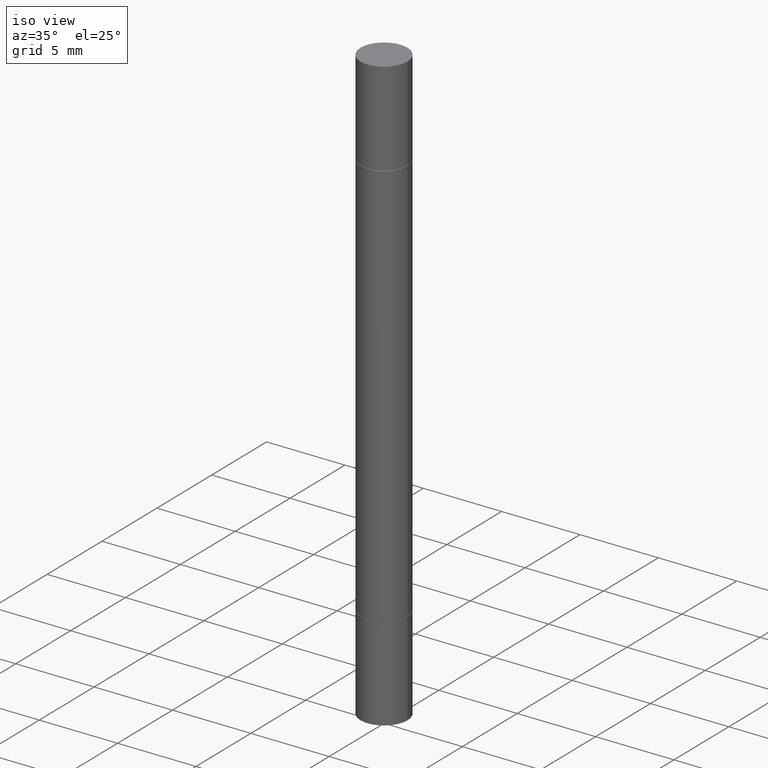
[diagram: clean part render]
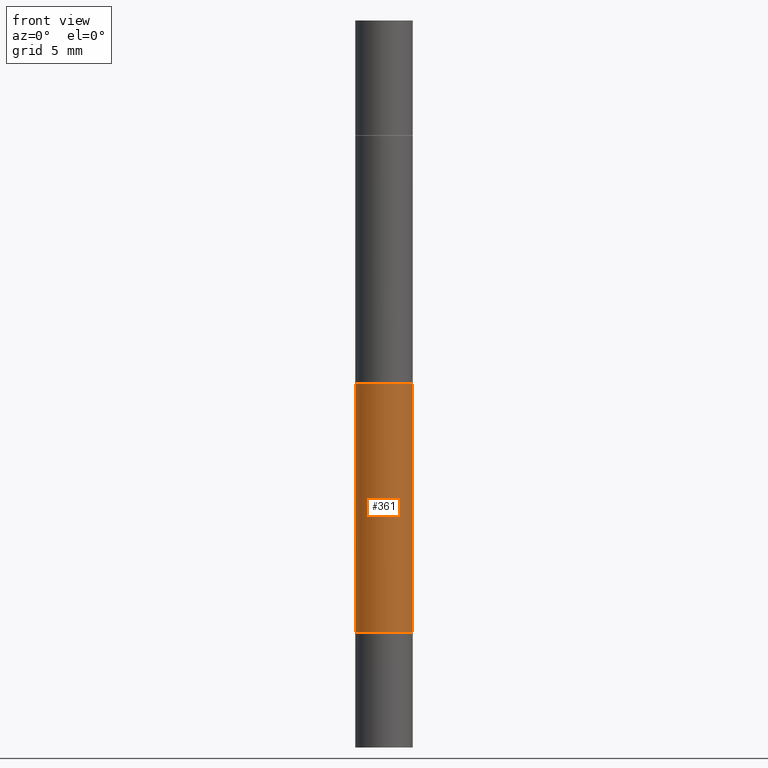
[diagram: tour spotlight — one face highlighted and labeled with its STEP entity id]
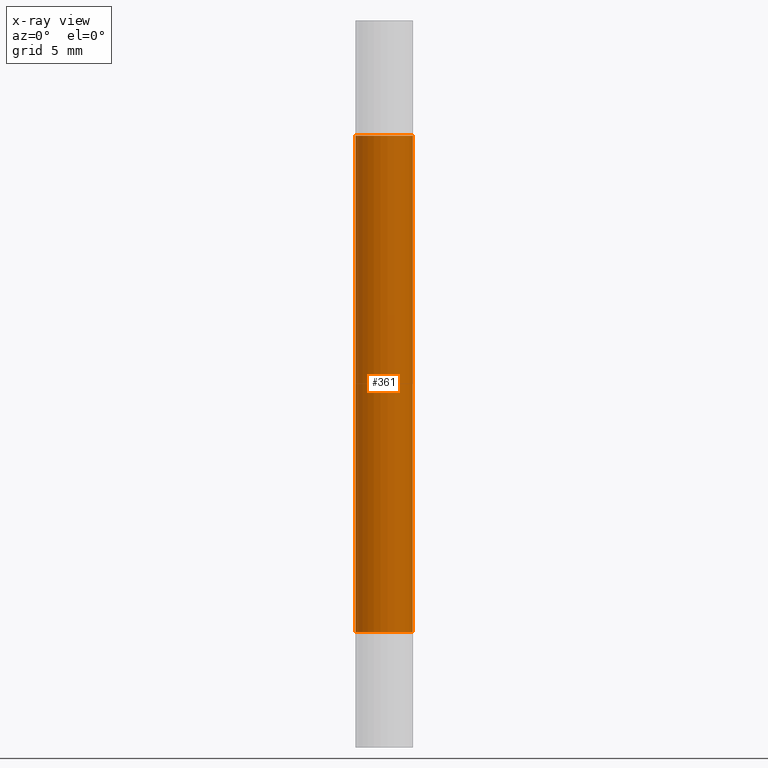
[diagram: x-ray of the same camera — body ghosted, this tour face saturated]
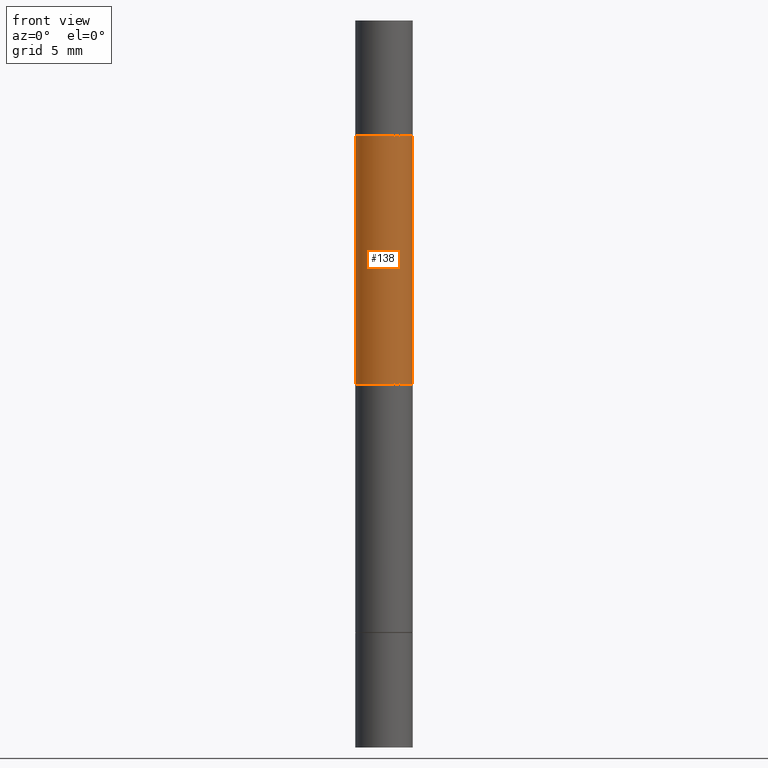
[diagram: tour spotlight — one face highlighted and labeled with its STEP entity id]
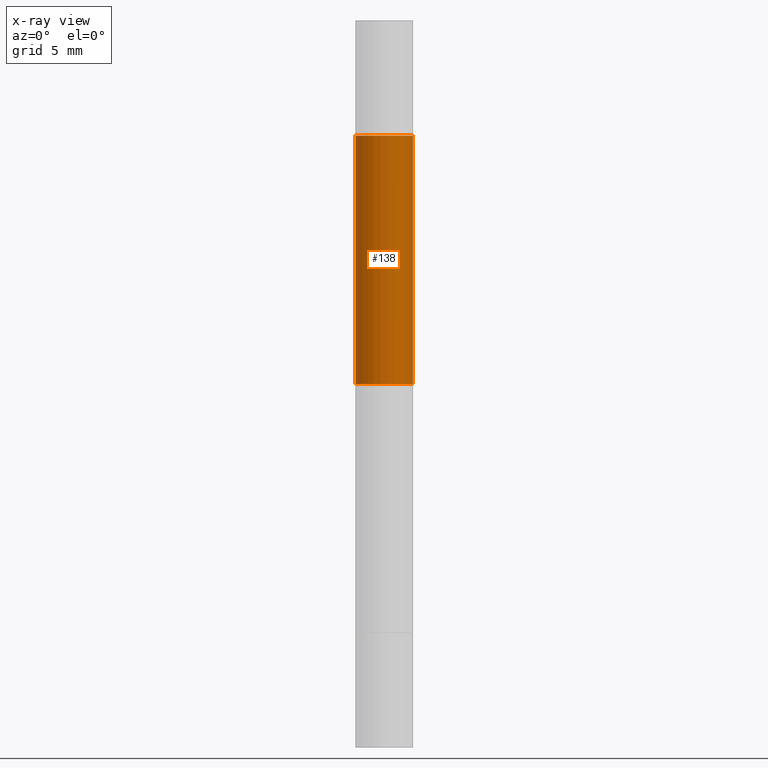
[diagram: x-ray of the same camera — body ghosted, this tour face saturated]
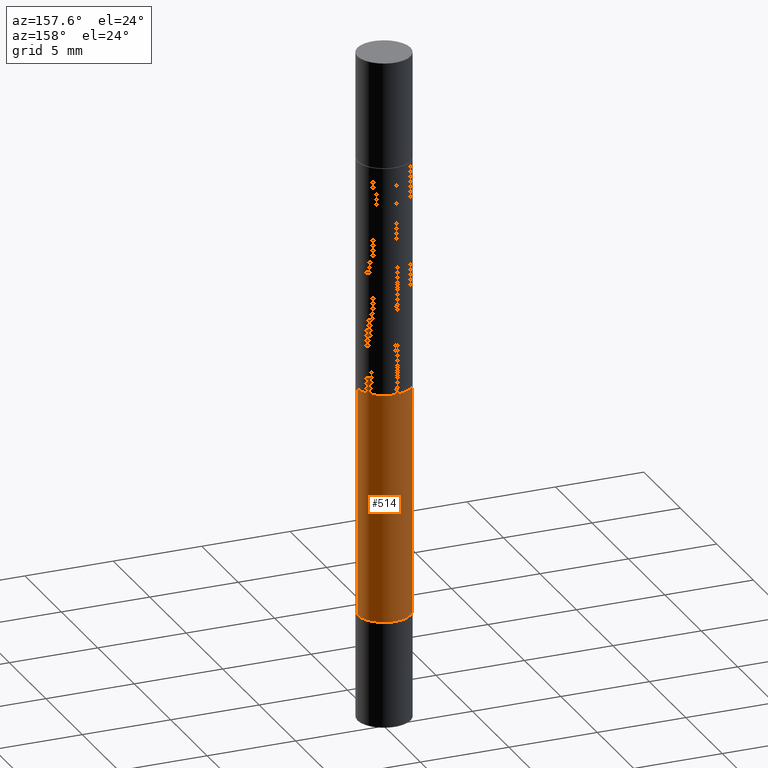
[diagram: tour spotlight — one face highlighted and labeled with its STEP entity id]
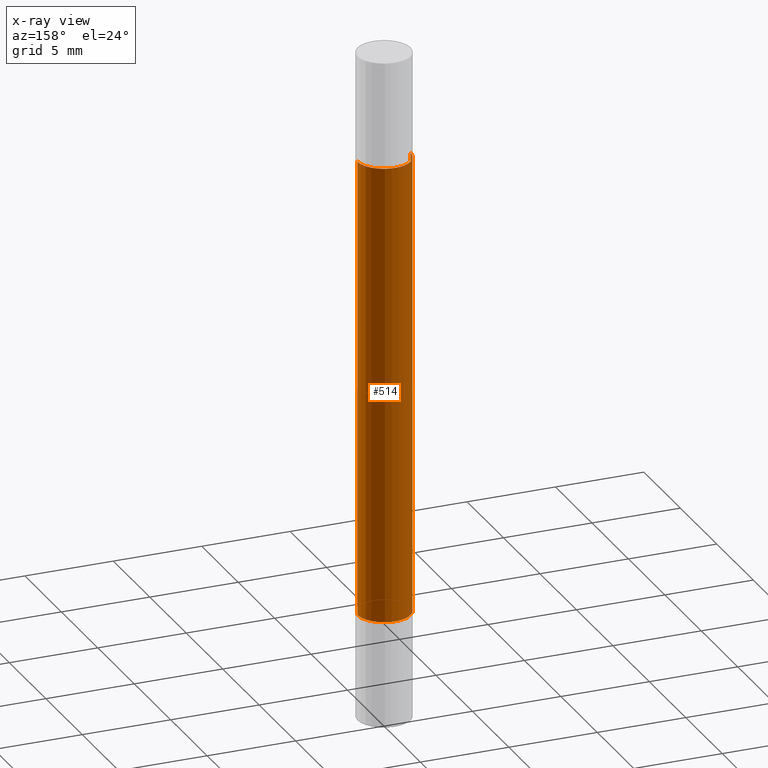
[diagram: x-ray of the same camera — body ghosted, this tour face saturated]
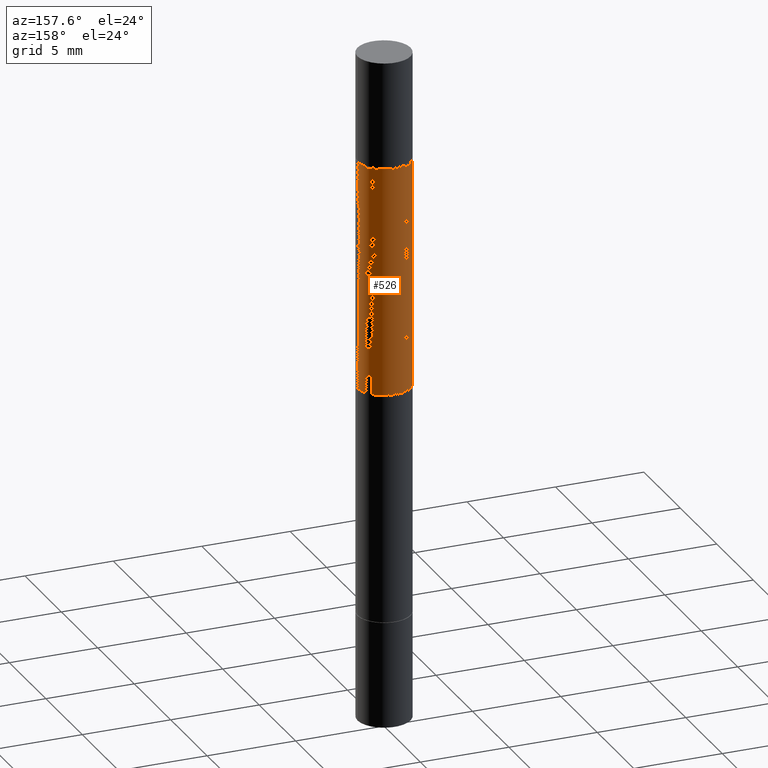
[diagram: tour spotlight — one face highlighted and labeled with its STEP entity id]
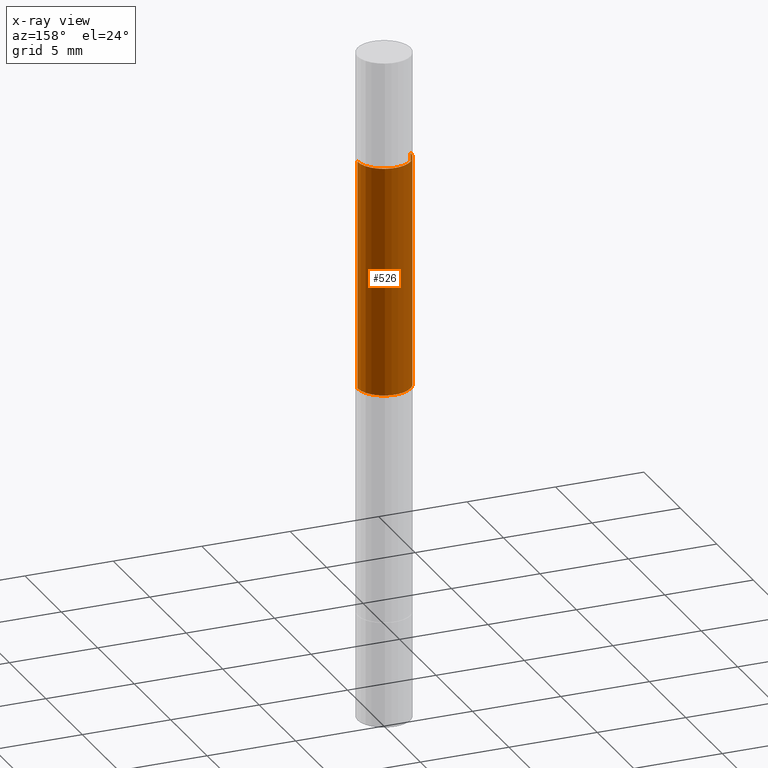
[diagram: x-ray of the same camera — body ghosted, this tour face saturated]
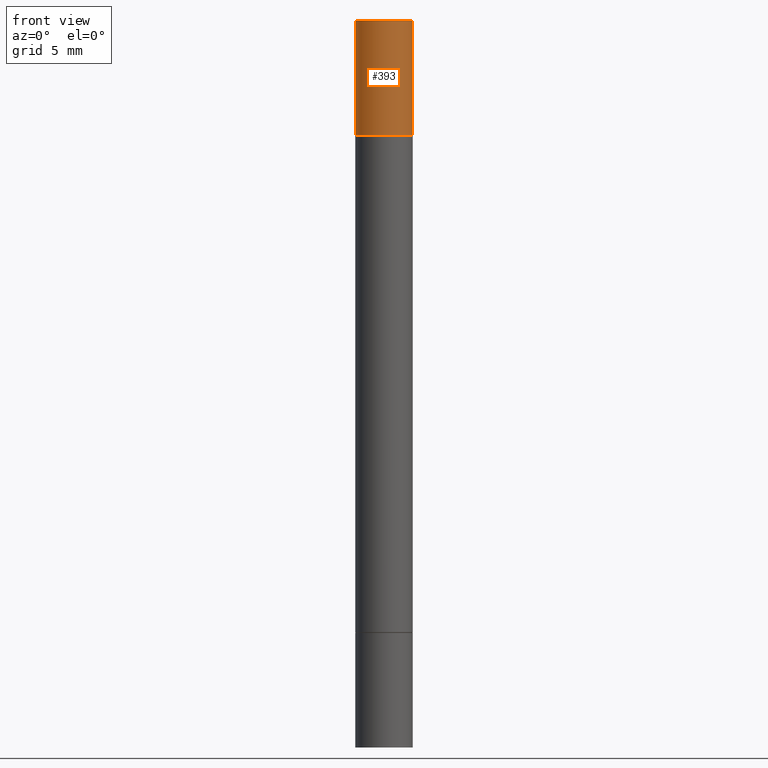
[diagram: tour spotlight — one face highlighted and labeled with its STEP entity id]
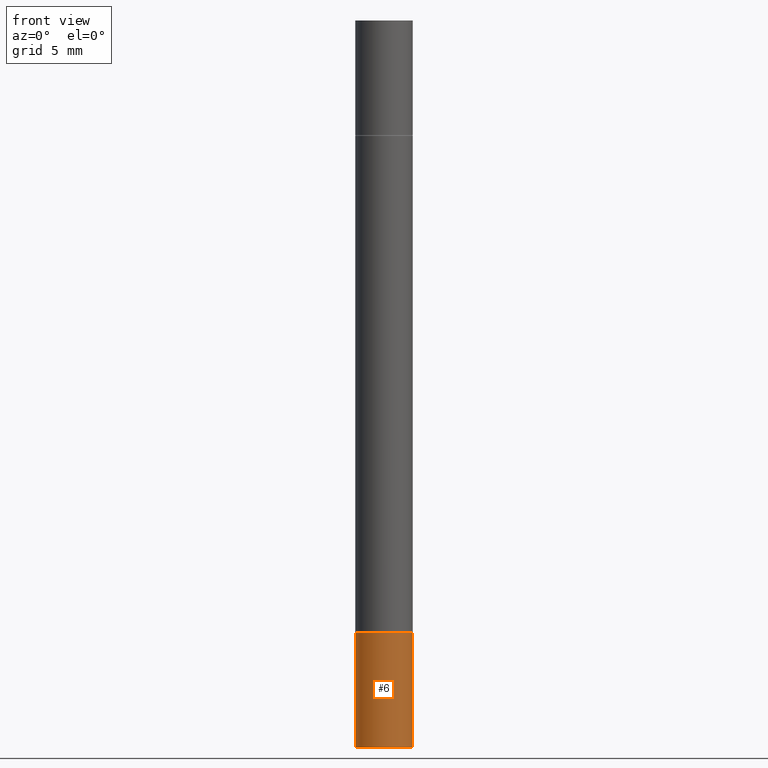
[diagram: tour spotlight — one face highlighted and labeled with its STEP entity id]
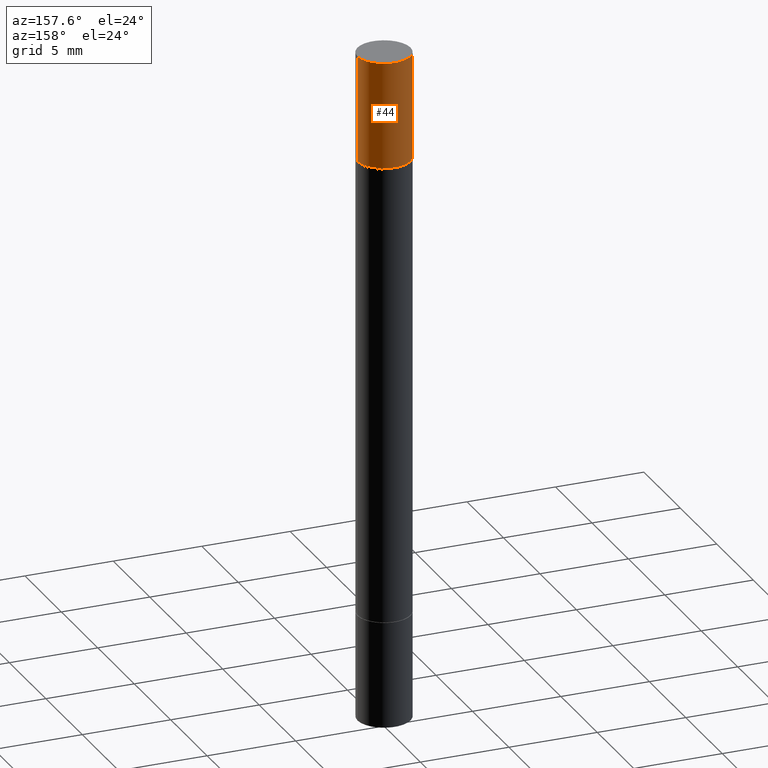
[diagram: tour spotlight — one face highlighted and labeled with its STEP entity id]
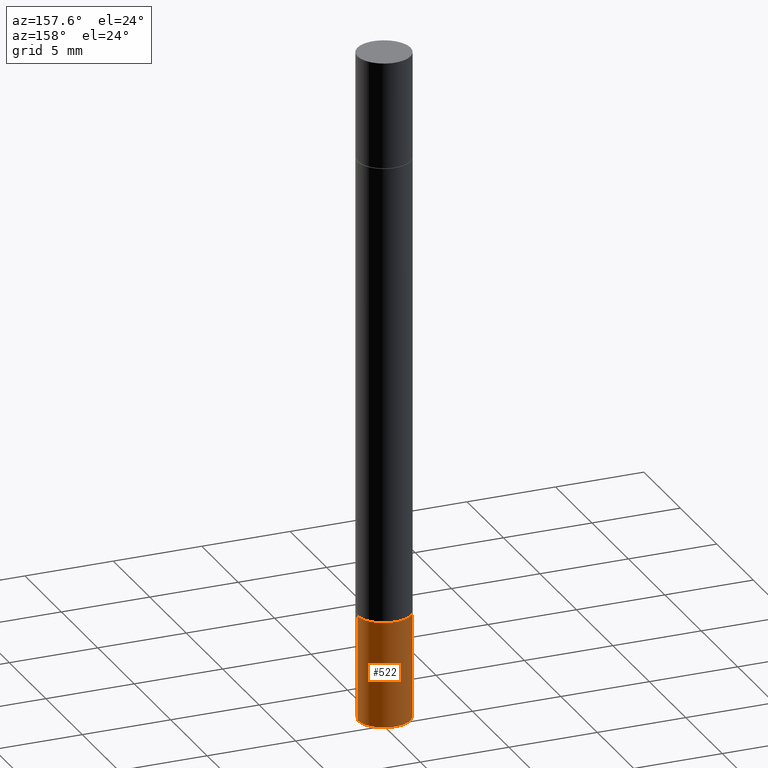
[diagram: tour spotlight — one face highlighted and labeled with its STEP entity id]
A machine part: a face-by-face anatomy tour. The part has 26 B-rep faces; the first image is the clean iso view, then the 8 largest visible faces are spotlighted one at a time (largest first), each with its STEP entity span.

Face 1 — front view, entity #361. An x-ray twin of the same camera follows (body ghosted, this face saturated) — the face is partly hidden behind the body. In plain terms, the highlighted cylindrical surface (edge-blend (fillet) strip) has radius 1.4999 mm, axis along (-0, -0, -1).
Definition (entity closure, byte-faithful):
#3 = FACE_OUTER_BOUND ( 'NONE', #55, .T. ) ;
#8 = ORIENTED_EDGE ( 'NONE', *, *, #368, .F. ) ;
#10 = CIRCLE ( 'NONE', #403, 0.05904999999999998445 ) ;
#39 = DIRECTION ( 'NONE',  ( 1.000000000000000000, -6.982962677686266711E-15, 0.000000000000000000 ) ) ;
#55 = EDGE_LOOP ( 'NONE', ( #173, #640, #436, #8 ) ) ;
#64 = VERTEX_POINT ( 'NONE', #250 ) ;
#67 = CARTESIAN_POINT ( 'NONE',  ( 0.05904999999999998445, -1.239803494897776754E-15, -0.2371999999999998554 ) ) ;
#108 = DIRECTION ( 'NONE',  ( -2.445468806185136877E-29, -3.492890411551753071E-15, -1.000000000000000000 ) ) ;
#143 = DIRECTION ( 'NONE',  ( 1.000000000000000000, -6.982962677686258033E-15, 0.000000000000000000 ) ) ;
#147 = AXIS2_PLACEMENT_3D ( 'NONE', #431, #307, #39 ) ;
#173 = ORIENTED_EDGE ( 'NONE', *, *, #256, .F. ) ;
#208 = CARTESIAN_POINT ( 'NONE',  ( 3.078600680106467904E-29, -8.274595487804013404E-16, -0.2371999999999998554 ) ) ;
#211 = LINE ( 'NONE', #568, #509 ) ;
#213 = CYLINDRICAL_SURFACE ( 'NONE', #147, 0.05904999999999991506 ) ;
#237 = VERTEX_POINT ( 'NONE', #318 ) ;
#250 = CARTESIAN_POINT ( 'NONE',  ( -0.05904999999999998445, -2.206690208753203299E-15, -1.258899999999999686 ) ) ;
#256 = EDGE_CURVE ( 'NONE', #237, #504, #556, .T. ) ;
#307 = DIRECTION ( 'NONE',  ( -2.445468806185136597E-29, -3.492890411551752677E-15, -1.000000000000000000 ) ) ;
#318 = CARTESIAN_POINT ( 'NONE',  ( -0.05904999999999998445, -4.223471420119940006E-16, -0.2371999999999998554 ) ) ;
#351 = EDGE_CURVE ( 'NONE', #237, #64, #211, .T. ) ;
#361 = ADVANCED_FACE ( 'NONE', ( #3 ), #213, .T. ) ;
#368 = EDGE_CURVE ( 'NONE', #504, #588, #464, .T. ) ;
#370 = DIRECTION ( 'NONE',  ( 1.000000000000000000, -6.982962677686266711E-15, 0.000000000000000000 ) ) ;
#394 = DIRECTION ( 'NONE',  ( -2.445468806185136877E-29, -3.492890411551753071E-15, -1.000000000000000000 ) ) ;
#403 = AXIS2_PLACEMENT_3D ( 'NONE', #410, #613, #143 ) ;
#410 = CARTESIAN_POINT ( 'NONE',  ( 3.078600680106467904E-29, -4.395425857469635235E-15, -1.258899999999999686 ) ) ;
#431 = CARTESIAN_POINT ( 'NONE',  ( 0.000000000000000000, -5.224659287882902542E-15, -1.496099999999999541 ) ) ;
#436 = ORIENTED_EDGE ( 'NONE', *, *, #620, .T. ) ;
#464 = LINE ( 'NONE', #585, #468 ) ;
#468 = VECTOR ( 'NONE', #394, 39.37007874015748143 ) ;
#504 = VERTEX_POINT ( 'NONE', #67 ) ;
#509 = VECTOR ( 'NONE', #108, 39.37007874015748143 ) ;
#539 = AXIS2_PLACEMENT_3D ( 'NONE', #208, #619, #370 ) ;
#556 = CIRCLE ( 'NONE', #539, 0.05904999999999998445 ) ;
#568 = CARTESIAN_POINT ( 'NONE',  ( -0.05904999999999991506, -4.819546881114493773E-15, -1.496099999999999541 ) ) ;
#585 = CARTESIAN_POINT ( 'NONE',  ( 0.05904999999999991506, -5.637003234000275885E-15, -1.496099999999999541 ) ) ;
#588 = VERTEX_POINT ( 'NONE', #610 ) ;
#610 = CARTESIAN_POINT ( 'NONE',  ( 0.05904999999999998445, -4.807769803587008577E-15, -1.258899999999999686 ) ) ;
#613 = DIRECTION ( 'NONE',  ( -2.445468806185136597E-29, 3.491481338843145583E-15, 1.000000000000000000 ) ) ;
#619 = DIRECTION ( 'NONE',  ( 2.445468806185136597E-29, 3.492890411551752677E-15, 1.000000000000000000 ) ) ;
#620 = EDGE_CURVE ( 'NONE', #64, #588, #10, .T. ) ;
#640 = ORIENTED_EDGE ( 'NONE', *, *, #351, .T. ) ;

Face 2 — front view, entity #138. An x-ray twin of the same camera follows (body ghosted, this face saturated) — the face is partly hidden behind the body. In plain terms, the highlighted cylindrical surface (edge-blend (fillet) strip) has radius 1.4999 mm, axis along (-0, -0, -1).
Definition (entity closure, byte-faithful):
#12 = DIRECTION ( 'NONE',  ( -0.000000000000000000, -3.492185875197449130E-15, -1.000000000000000000 ) ) ;
#32 = AXIS2_PLACEMENT_3D ( 'NONE', #130, #531, #380 ) ;
#33 = LINE ( 'NONE', #246, #676 ) ;
#45 = EDGE_CURVE ( 'NONE', #495, #550, #80, .T. ) ;
#62 = CARTESIAN_POINT ( 'NONE',  ( 1.829332940466790914E-29, -2.611802615521614436E-15, -0.7480499999999997707 ) ) ;
#80 = LINE ( 'NONE', #301, #358 ) ;
#86 = VERTEX_POINT ( 'NONE', #574 ) ;
#129 = ORIENTED_EDGE ( 'NONE', *, *, #45, .F. ) ;
#130 = CARTESIAN_POINT ( 'NONE',  ( 3.078600680106467904E-29, -8.274595487804013404E-16, -0.2371999999999998554 ) ) ;
#138 = ADVANCED_FACE ( 'NONE', ( #238 ), #609, .T. ) ;
#202 = EDGE_CURVE ( 'NONE', #550, #86, #593, .T. ) ;
#224 = ORIENTED_EDGE ( 'NONE', *, *, #202, .F. ) ;
#238 = FACE_OUTER_BOUND ( 'NONE', #553, .T. ) ;
#246 = CARTESIAN_POINT ( 'NONE',  ( -0.05904999999999991506, -4.819546881114493773E-15, -1.496099999999999541 ) ) ;
#287 = VERTEX_POINT ( 'NONE', #409 ) ;
#301 = CARTESIAN_POINT ( 'NONE',  ( 0.05904999999999991506, -5.637003234000275885E-15, -1.496099999999999541 ) ) ;
#314 = AXIS2_PLACEMENT_3D ( 'NONE', #62, #12, #629 ) ;
#331 = DIRECTION ( 'NONE',  ( -2.445468806185136597E-29, -3.492890411551752677E-15, -1.000000000000000000 ) ) ;
#358 = VECTOR ( 'NONE', #516, 39.37007874015748143 ) ;
#371 = CARTESIAN_POINT ( 'NONE',  ( 0.000000000000000000, -5.224659287882902542E-15, -1.496099999999999541 ) ) ;
#380 = DIRECTION ( 'NONE',  ( 1.000000000000000000, -6.982962677686266711E-15, 0.000000000000000000 ) ) ;
#396 = ORIENTED_EDGE ( 'NONE', *, *, #611, .T. ) ;
#409 = CARTESIAN_POINT ( 'NONE',  ( -0.05904999999999998445, -4.223471420119940006E-16, -0.2371999999999998554 ) ) ;
#420 = EDGE_CURVE ( 'NONE', #287, #495, #502, .T. ) ;
#454 = DIRECTION ( 'NONE',  ( -2.445468806185136877E-29, -3.492890411551753071E-15, -1.000000000000000000 ) ) ;
#461 = CARTESIAN_POINT ( 'NONE',  ( 0.05904999999999991506, -2.131975028268380589E-15, -0.7480499999999997707 ) ) ;
#495 = VERTEX_POINT ( 'NONE', #543 ) ;
#502 = CIRCLE ( 'NONE', #32, 0.05904999999999998445 ) ;
#516 = DIRECTION ( 'NONE',  ( -2.445468806185136877E-29, -3.492890411551753071E-15, -1.000000000000000000 ) ) ;
#531 = DIRECTION ( 'NONE',  ( 2.445468806185136597E-29, 3.492890411551752677E-15, 1.000000000000000000 ) ) ;
#543 = CARTESIAN_POINT ( 'NONE',  ( 0.05904999999999998445, -1.239803494897776754E-15, -0.2371999999999998554 ) ) ;
#545 = ORIENTED_EDGE ( 'NONE', *, *, #420, .F. ) ;
#546 = DIRECTION ( 'NONE',  ( 1.000000000000000000, -6.982962677686266711E-15, 0.000000000000000000 ) ) ;
#550 = VERTEX_POINT ( 'NONE', #461 ) ;
#553 = EDGE_LOOP ( 'NONE', ( #545, #396, #224, #129 ) ) ;
#572 = AXIS2_PLACEMENT_3D ( 'NONE', #371, #331, #546 ) ;
#574 = CARTESIAN_POINT ( 'NONE',  ( -0.05904999999999991506, -1.314518675382599069E-15, -0.7480499999999997707 ) ) ;
#593 = CIRCLE ( 'NONE', #314, 0.05904999999999991506 ) ;
#609 = CYLINDRICAL_SURFACE ( 'NONE', #572, 0.05904999999999991506 ) ;
#611 = EDGE_CURVE ( 'NONE', #287, #86, #33, .T. ) ;
#629 = DIRECTION ( 'NONE',  ( 0.000000000000000000, 1.000000000000000000, -4.626330217890376436E-15 ) ) ;
#676 = VECTOR ( 'NONE', #454, 39.37007874015748143 ) ;

Face 3 — auxiliary view, entity #514. An x-ray twin of the same camera follows (body ghosted, this face saturated) — the face is partly hidden behind the body. In plain terms, the highlighted cylindrical surface (edge-blend (fillet) strip) has radius 1.4999 mm, axis along (-0, -0, -1).
Definition (entity closure, byte-faithful):
#19 = ORIENTED_EDGE ( 'NONE', *, *, #586, .F. ) ;
#27 = ORIENTED_EDGE ( 'NONE', *, *, #391, .T. ) ;
#29 = FACE_OUTER_BOUND ( 'NONE', #395, .T. ) ;
#64 = VERTEX_POINT ( 'NONE', #250 ) ;
#67 = CARTESIAN_POINT ( 'NONE',  ( 0.05904999999999998445, -1.239803494897776754E-15, -0.2371999999999998554 ) ) ;
#89 = DIRECTION ( 'NONE',  ( 1.000000000000000000, -6.982962677686266711E-15, 0.000000000000000000 ) ) ;
#108 = DIRECTION ( 'NONE',  ( -2.445468806185136877E-29, -3.492890411551753071E-15, -1.000000000000000000 ) ) ;
#121 = DIRECTION ( 'NONE',  ( -2.445468806185136597E-29, 3.491481338843145583E-15, 1.000000000000000000 ) ) ;
#137 = AXIS2_PLACEMENT_3D ( 'NONE', #139, #560, #195 ) ;
#139 = CARTESIAN_POINT ( 'NONE',  ( 0.000000000000000000, -5.224659287882902542E-15, -1.496099999999999541 ) ) ;
#176 = CARTESIAN_POINT ( 'NONE',  ( 3.078600680106467904E-29, -4.395425857469635235E-15, -1.258899999999999686 ) ) ;
#195 = DIRECTION ( 'NONE',  ( 1.000000000000000000, -6.982962677686266711E-15, 0.000000000000000000 ) ) ;
#211 = LINE ( 'NONE', #568, #509 ) ;
#237 = VERTEX_POINT ( 'NONE', #318 ) ;
#240 = CYLINDRICAL_SURFACE ( 'NONE', #137, 0.05904999999999991506 ) ;
#244 = AXIS2_PLACEMENT_3D ( 'NONE', #176, #121, #328 ) ;
#250 = CARTESIAN_POINT ( 'NONE',  ( -0.05904999999999998445, -2.206690208753203299E-15, -1.258899999999999686 ) ) ;
#279 = ORIENTED_EDGE ( 'NONE', *, *, #351, .F. ) ;
#300 = DIRECTION ( 'NONE',  ( 2.445468806185136597E-29, 3.492890411551752677E-15, 1.000000000000000000 ) ) ;
#318 = CARTESIAN_POINT ( 'NONE',  ( -0.05904999999999998445, -4.223471420119940006E-16, -0.2371999999999998554 ) ) ;
#328 = DIRECTION ( 'NONE',  ( 1.000000000000000000, -6.982962677686258033E-15, 0.000000000000000000 ) ) ;
#334 = CIRCLE ( 'NONE', #388, 0.05904999999999998445 ) ;
#351 = EDGE_CURVE ( 'NONE', #237, #64, #211, .T. ) ;
#355 = CARTESIAN_POINT ( 'NONE',  ( 3.078600680106467904E-29, -8.274595487804013404E-16, -0.2371999999999998554 ) ) ;
#368 = EDGE_CURVE ( 'NONE', #504, #588, #464, .T. ) ;
#388 = AXIS2_PLACEMENT_3D ( 'NONE', #355, #300, #89 ) ;
#391 = EDGE_CURVE ( 'NONE', #588, #64, #529, .T. ) ;
#394 = DIRECTION ( 'NONE',  ( -2.445468806185136877E-29, -3.492890411551753071E-15, -1.000000000000000000 ) ) ;
#395 = EDGE_LOOP ( 'NONE', ( #279, #19, #533, #27 ) ) ;
#464 = LINE ( 'NONE', #585, #468 ) ;
#468 = VECTOR ( 'NONE', #394, 39.37007874015748143 ) ;
#504 = VERTEX_POINT ( 'NONE', #67 ) ;
#509 = VECTOR ( 'NONE', #108, 39.37007874015748143 ) ;
#514 = ADVANCED_FACE ( 'NONE', ( #29 ), #240, .T. ) ;
#529 = CIRCLE ( 'NONE', #244, 0.05904999999999998445 ) ;
#533 = ORIENTED_EDGE ( 'NONE', *, *, #368, .T. ) ;
#560 = DIRECTION ( 'NONE',  ( -2.445468806185136597E-29, -3.492890411551752677E-15, -1.000000000000000000 ) ) ;
#568 = CARTESIAN_POINT ( 'NONE',  ( -0.05904999999999991506, -4.819546881114493773E-15, -1.496099999999999541 ) ) ;
#585 = CARTESIAN_POINT ( 'NONE',  ( 0.05904999999999991506, -5.637003234000275885E-15, -1.496099999999999541 ) ) ;
#586 = EDGE_CURVE ( 'NONE', #504, #237, #334, .T. ) ;
#588 = VERTEX_POINT ( 'NONE', #610 ) ;
#610 = CARTESIAN_POINT ( 'NONE',  ( 0.05904999999999998445, -4.807769803587008577E-15, -1.258899999999999686 ) ) ;

Face 4 — auxiliary view, entity #526. An x-ray twin of the same camera follows (body ghosted, this face saturated) — the face is partly hidden behind the body. In plain terms, the highlighted cylindrical surface (edge-blend (fillet) strip) has radius 1.4999 mm, axis along (-0, -0, -1).
Definition (entity closure, byte-faithful):
#33 = LINE ( 'NONE', #246, #676 ) ;
#45 = EDGE_CURVE ( 'NONE', #495, #550, #80, .T. ) ;
#77 = DIRECTION ( 'NONE',  ( 1.000000000000000000, -6.982962677686266711E-15, 0.000000000000000000 ) ) ;
#80 = LINE ( 'NONE', #301, #358 ) ;
#86 = VERTEX_POINT ( 'NONE', #574 ) ;
#94 = AXIS2_PLACEMENT_3D ( 'NONE', #360, #569, #518 ) ;
#178 = CIRCLE ( 'NONE', #94, 0.05904999999999991506 ) ;
#199 = FACE_OUTER_BOUND ( 'NONE', #444, .T. ) ;
#223 = ORIENTED_EDGE ( 'NONE', *, *, #343, .F. ) ;
#233 = AXIS2_PLACEMENT_3D ( 'NONE', #558, #249, #77 ) ;
#242 = AXIS2_PLACEMENT_3D ( 'NONE', #677, #266, #478 ) ;
#243 = CIRCLE ( 'NONE', #242, 0.05904999999999998445 ) ;
#246 = CARTESIAN_POINT ( 'NONE',  ( -0.05904999999999991506, -4.819546881114493773E-15, -1.496099999999999541 ) ) ;
#249 = DIRECTION ( 'NONE',  ( -2.445468806185136597E-29, -3.492890411551752677E-15, -1.000000000000000000 ) ) ;
#266 = DIRECTION ( 'NONE',  ( 2.445468806185136597E-29, 3.492890411551752677E-15, 1.000000000000000000 ) ) ;
#287 = VERTEX_POINT ( 'NONE', #409 ) ;
#301 = CARTESIAN_POINT ( 'NONE',  ( 0.05904999999999991506, -5.637003234000275885E-15, -1.496099999999999541 ) ) ;
#343 = EDGE_CURVE ( 'NONE', #495, #287, #243, .T. ) ;
#358 = VECTOR ( 'NONE', #516, 39.37007874015748143 ) ;
#360 = CARTESIAN_POINT ( 'NONE',  ( 1.829332940466790914E-29, -2.611802615521614436E-15, -0.7480499999999997707 ) ) ;
#409 = CARTESIAN_POINT ( 'NONE',  ( -0.05904999999999998445, -4.223471420119940006E-16, -0.2371999999999998554 ) ) ;
#421 = ORIENTED_EDGE ( 'NONE', *, *, #628, .F. ) ;
#444 = EDGE_LOOP ( 'NONE', ( #452, #223, #487, #421 ) ) ;
#452 = ORIENTED_EDGE ( 'NONE', *, *, #611, .F. ) ;
#454 = DIRECTION ( 'NONE',  ( -2.445468806185136877E-29, -3.492890411551753071E-15, -1.000000000000000000 ) ) ;
#461 = CARTESIAN_POINT ( 'NONE',  ( 0.05904999999999991506, -2.131975028268380589E-15, -0.7480499999999997707 ) ) ;
#478 = DIRECTION ( 'NONE',  ( 1.000000000000000000, -6.982962677686266711E-15, 0.000000000000000000 ) ) ;
#487 = ORIENTED_EDGE ( 'NONE', *, *, #45, .T. ) ;
#495 = VERTEX_POINT ( 'NONE', #543 ) ;
#516 = DIRECTION ( 'NONE',  ( -2.445468806185136877E-29, -3.492890411551753071E-15, -1.000000000000000000 ) ) ;
#518 = DIRECTION ( 'NONE',  ( 0.000000000000000000, 1.000000000000000000, -4.626330217890376436E-15 ) ) ;
#526 = ADVANCED_FACE ( 'NONE', ( #199 ), #663, .T. ) ;
#543 = CARTESIAN_POINT ( 'NONE',  ( 0.05904999999999998445, -1.239803494897776754E-15, -0.2371999999999998554 ) ) ;
#550 = VERTEX_POINT ( 'NONE', #461 ) ;
#558 = CARTESIAN_POINT ( 'NONE',  ( 0.000000000000000000, -5.224659287882902542E-15, -1.496099999999999541 ) ) ;
#569 = DIRECTION ( 'NONE',  ( -0.000000000000000000, -3.492185875197449130E-15, -1.000000000000000000 ) ) ;
#574 = CARTESIAN_POINT ( 'NONE',  ( -0.05904999999999991506, -1.314518675382599069E-15, -0.7480499999999997707 ) ) ;
#611 = EDGE_CURVE ( 'NONE', #287, #86, #33, .T. ) ;
#628 = EDGE_CURVE ( 'NONE', #86, #550, #178, .T. ) ;
#663 = CYLINDRICAL_SURFACE ( 'NONE', #233, 0.05904999999999991506 ) ;
#676 = VECTOR ( 'NONE', #454, 39.37007874015748143 ) ;
#677 = CARTESIAN_POINT ( 'NONE',  ( 3.078600680106467904E-29, -8.274595487804013404E-16, -0.2371999999999998554 ) ) ;

Face 5 — front view, entity #393. In plain terms, the highlighted cylindrical surface (edge-blend (fillet) strip) has radius 1.4999 mm, axis along (-0, -0, -1).
Definition (entity closure, byte-faithful):
#11 = VERTEX_POINT ( 'NONE', #38 ) ;
#34 = EDGE_LOOP ( 'NONE', ( #166, #124, #554, #399 ) ) ;
#38 = CARTESIAN_POINT ( 'NONE',  ( -0.05905000000000001914, -6.343893996178441579E-18, 2.731847993664278010E-16 ) ) ;
#41 = AXIS2_PLACEMENT_3D ( 'NONE', #552, #534, #180 ) ;
#52 = DIRECTION ( 'NONE',  ( 2.445468806185136597E-29, 3.492890411551752677E-15, 1.000000000000000000 ) ) ;
#56 = DIRECTION ( 'NONE',  ( 1.000000000000000000, -6.982962677686266711E-15, 0.000000000000000000 ) ) ;
#58 = FACE_OUTER_BOUND ( 'NONE', #34, .T. ) ;
#75 = DIRECTION ( 'NONE',  ( -2.445468806185136877E-29, -3.492890411551753071E-15, -1.000000000000000000 ) ) ;
#101 = LINE ( 'NONE', #203, #261 ) ;
#124 = ORIENTED_EDGE ( 'NONE', *, *, #506, .T. ) ;
#144 = CARTESIAN_POINT ( 'NONE',  ( 0.05905000000000001914, -4.112898892776993753E-16, 2.731847993664263218E-16 ) ) ;
#151 = EDGE_CURVE ( 'NONE', #11, #291, #321, .T. ) ;
#166 = ORIENTED_EDGE ( 'NONE', *, *, #151, .F. ) ;
#180 = DIRECTION ( 'NONE',  ( 1.000000000000000000, -6.982962677686270655E-15, 0.000000000000000000 ) ) ;
#203 = CARTESIAN_POINT ( 'NONE',  ( 0.05905000000000001914, -5.637003234000276674E-15, -1.496099999999999541 ) ) ;
#239 = CARTESIAN_POINT ( 'NONE',  ( -0.05905000000000001914, -4.819546881114493773E-15, -1.496099999999999541 ) ) ;
#261 = VECTOR ( 'NONE', #416, 39.37007874015748143 ) ;
#291 = VERTEX_POINT ( 'NONE', #144 ) ;
#297 = CARTESIAN_POINT ( 'NONE',  ( 0.05905000000000001914, -1.236310604486225006E-15, -0.2361999999999997990 ) ) ;
#317 = EDGE_CURVE ( 'NONE', #472, #535, #521, .T. ) ;
#321 = CIRCLE ( 'NONE', #662, 0.05905000000000001914 ) ;
#393 = ADVANCED_FACE ( 'NONE', ( #58 ), #591, .T. ) ;
#398 = LINE ( 'NONE', #239, #625 ) ;
#399 = ORIENTED_EDGE ( 'NONE', *, *, #675, .F. ) ;
#416 = DIRECTION ( 'NONE',  ( -2.445468806185136877E-29, -3.492890411551753071E-15, -1.000000000000000000 ) ) ;
#472 = VERTEX_POINT ( 'NONE', #642 ) ;
#482 = DIRECTION ( 'NONE',  ( 2.445468806185136597E-29, 3.492890411551752677E-15, 1.000000000000000000 ) ) ;
#506 = EDGE_CURVE ( 'NONE', #11, #472, #398, .T. ) ;
#517 = DIRECTION ( 'NONE',  ( 1.000000000000000000, -6.982962677686266711E-15, 0.000000000000000000 ) ) ;
#521 = CIRCLE ( 'NONE', #606, 0.05905000000000001914 ) ;
#524 = CARTESIAN_POINT ( 'NONE',  ( 3.081046148912652946E-29, -8.239666583688507762E-16, -0.2361999999999997990 ) ) ;
#534 = DIRECTION ( 'NONE',  ( -2.445468806185136597E-29, -3.492890411551752677E-15, -1.000000000000000000 ) ) ;
#535 = VERTEX_POINT ( 'NONE', #297 ) ;
#552 = CARTESIAN_POINT ( 'NONE',  ( 0.000000000000000000, -5.224659287882902542E-15, -1.496099999999999541 ) ) ;
#554 = ORIENTED_EDGE ( 'NONE', *, *, #317, .T. ) ;
#583 = CARTESIAN_POINT ( 'NONE',  ( 3.658665880933582389E-29, 1.054056839674803370E-18, 2.731847993664263218E-16 ) ) ;
#591 = CYLINDRICAL_SURFACE ( 'NONE', #41, 0.05905000000000001914 ) ;
#606 = AXIS2_PLACEMENT_3D ( 'NONE', #524, #52, #517 ) ;
#625 = VECTOR ( 'NONE', #75, 39.37007874015748143 ) ;
#642 = CARTESIAN_POINT ( 'NONE',  ( -0.05905000000000001914, -6.343893996178441579E-18, -0.2361999999999997990 ) ) ;
#662 = AXIS2_PLACEMENT_3D ( 'NONE', #583, #482, #56 ) ;
#675 = EDGE_CURVE ( 'NONE', #291, #535, #101, .T. ) ;

Face 6 — front view, entity #6. In plain terms, the highlighted cylindrical surface (edge-blend (fillet) strip) has radius 1.4999 mm, axis along (-0, 0, 1).
Definition (entity closure, byte-faithful):
#6 = ADVANCED_FACE ( 'NONE', ( #567 ), #140, .T. ) ;
#22 = VERTEX_POINT ( 'NONE', #405 ) ;
#71 = VERTEX_POINT ( 'NONE', #559 ) ;
#103 = ORIENTED_EDGE ( 'NONE', *, *, #459, .F. ) ;
#136 = CIRCLE ( 'NONE', #214, 0.05905000000000001914 ) ;
#140 = CYLINDRICAL_SURFACE ( 'NONE', #649, 0.05905000000000001914 ) ;
#141 = CARTESIAN_POINT ( 'NONE',  ( -0.05905000000000001914, -4.391685799459515247E-15, -1.259899999999999798 ) ) ;
#214 = AXIS2_PLACEMENT_3D ( 'NONE', #248, #363, #260 ) ;
#248 = CARTESIAN_POINT ( 'NONE',  ( 3.658665880933582389E-29, -5.223605231043229660E-15, -1.496099999999999985 ) ) ;
#260 = DIRECTION ( 'NONE',  ( 1.000000000000000000, -6.982962677686270655E-15, 0.000000000000000000 ) ) ;
#293 = ORIENTED_EDGE ( 'NONE', *, *, #480, .F. ) ;
#295 = LINE ( 'NONE', #561, #651 ) ;
#298 = DIRECTION ( 'NONE',  ( 1.000000000000000000, -6.982962677686266711E-15, 4.876176775795935793E-29 ) ) ;
#310 = EDGE_CURVE ( 'NONE', #22, #71, #136, .T. ) ;
#323 = LINE ( 'NONE', #389, #626 ) ;
#335 = AXIS2_PLACEMENT_3D ( 'NONE', #638, #484, #646 ) ;
#350 = CIRCLE ( 'NONE', #335, 0.05905000000000001914 ) ;
#353 = DIRECTION ( 'NONE',  ( -2.445468806185136597E-29, 3.491481338843145583E-15, 1.000000000000000000 ) ) ;
#363 = DIRECTION ( 'NONE',  ( -2.445468806185136597E-29, 3.491481338843145583E-15, 1.000000000000000000 ) ) ;
#389 = CARTESIAN_POINT ( 'NONE',  ( -0.05905000000000001914, 4.195754854663392958E-16, -2.904631170795522943E-30 ) ) ;
#405 = CARTESIAN_POINT ( 'NONE',  ( -0.05905000000000001914, -4.391685799459515247E-15, -1.496099999999999985 ) ) ;
#438 = DIRECTION ( 'NONE',  ( -2.445468806185136877E-29, 3.491481338843145188E-15, 1.000000000000000000 ) ) ;
#441 = VERTEX_POINT ( 'NONE', #442 ) ;
#442 = CARTESIAN_POINT ( 'NONE',  ( 0.05905000000000001914, -4.811261284925853162E-15, -1.259899999999999798 ) ) ;
#449 = ORIENTED_EDGE ( 'NONE', *, *, #601, .T. ) ;
#455 = CARTESIAN_POINT ( 'NONE',  ( 0.000000000000000000, 0.000000000000000000, 0.000000000000000000 ) ) ;
#459 = EDGE_CURVE ( 'NONE', #22, #592, #323, .T. ) ;
#480 = EDGE_CURVE ( 'NONE', #592, #441, #350, .T. ) ;
#484 = DIRECTION ( 'NONE',  ( -2.445468806185136597E-29, 3.491481338843145583E-15, 1.000000000000000000 ) ) ;
#511 = DIRECTION ( 'NONE',  ( -2.445468806185136877E-29, 3.491481338843145188E-15, 1.000000000000000000 ) ) ;
#548 = ORIENTED_EDGE ( 'NONE', *, *, #310, .T. ) ;
#559 = CARTESIAN_POINT ( 'NONE',  ( 0.05905000000000001914, -5.635949177160603791E-15, -1.496099999999999985 ) ) ;
#561 = CARTESIAN_POINT ( 'NONE',  ( 0.05905000000000001914, -4.123439461173741806E-16, 2.879382386107500921E-30 ) ) ;
#567 = FACE_OUTER_BOUND ( 'NONE', #602, .T. ) ;
#592 = VERTEX_POINT ( 'NONE', #141 ) ;
#601 = EDGE_CURVE ( 'NONE', #71, #441, #295, .T. ) ;
#602 = EDGE_LOOP ( 'NONE', ( #103, #548, #449, #293 ) ) ;
#626 = VECTOR ( 'NONE', #438, 39.37007874015748143 ) ;
#638 = CARTESIAN_POINT ( 'NONE',  ( 3.081046148912652946E-29, -4.398917338808479031E-15, -1.259899999999999798 ) ) ;
#646 = DIRECTION ( 'NONE',  ( 1.000000000000000000, -6.982962677686270655E-15, 0.000000000000000000 ) ) ;
#649 = AXIS2_PLACEMENT_3D ( 'NONE', #455, #353, #298 ) ;
#651 = VECTOR ( 'NONE', #511, 39.37007874015748143 ) ;

Face 7 — auxiliary view, entity #44. In plain terms, the highlighted cylindrical surface (edge-blend (fillet) strip) has radius 1.4999 mm, axis along (-0, -0, -1).
Definition (entity closure, byte-faithful):
#11 = VERTEX_POINT ( 'NONE', #38 ) ;
#36 = DIRECTION ( 'NONE',  ( 2.445468806185136597E-29, 3.492890411551752677E-15, 1.000000000000000000 ) ) ;
#38 = CARTESIAN_POINT ( 'NONE',  ( -0.05905000000000001914, -6.343893996178441579E-18, 2.731847993664278010E-16 ) ) ;
#44 = ADVANCED_FACE ( 'NONE', ( #356 ), #196, .T. ) ;
#59 = ORIENTED_EDGE ( 'NONE', *, *, #400, .F. ) ;
#61 = ORIENTED_EDGE ( 'NONE', *, *, #506, .F. ) ;
#74 = CIRCLE ( 'NONE', #276, 0.05905000000000001914 ) ;
#75 = DIRECTION ( 'NONE',  ( -2.445468806185136877E-29, -3.492890411551753071E-15, -1.000000000000000000 ) ) ;
#76 = CARTESIAN_POINT ( 'NONE',  ( 0.000000000000000000, -5.224659287882902542E-15, -1.496099999999999541 ) ) ;
#101 = LINE ( 'NONE', #203, #261 ) ;
#109 = DIRECTION ( 'NONE',  ( 2.445468806185136597E-29, 3.492890411551752677E-15, 1.000000000000000000 ) ) ;
#135 = DIRECTION ( 'NONE',  ( -2.445468806185136597E-29, -3.492890411551752677E-15, -1.000000000000000000 ) ) ;
#144 = CARTESIAN_POINT ( 'NONE',  ( 0.05905000000000001914, -4.112898892776993753E-16, 2.731847993664263218E-16 ) ) ;
#189 = AXIS2_PLACEMENT_3D ( 'NONE', #76, #135, #562 ) ;
#196 = CYLINDRICAL_SURFACE ( 'NONE', #189, 0.05905000000000001914 ) ;
#203 = CARTESIAN_POINT ( 'NONE',  ( 0.05905000000000001914, -5.637003234000276674E-15, -1.496099999999999541 ) ) ;
#239 = CARTESIAN_POINT ( 'NONE',  ( -0.05905000000000001914, -4.819546881114493773E-15, -1.496099999999999541 ) ) ;
#261 = VECTOR ( 'NONE', #416, 39.37007874015748143 ) ;
#276 = AXIS2_PLACEMENT_3D ( 'NONE', #285, #109, #435 ) ;
#285 = CARTESIAN_POINT ( 'NONE',  ( 3.658665880933582389E-29, 1.054056839674803370E-18, 2.731847993664263218E-16 ) ) ;
#291 = VERTEX_POINT ( 'NONE', #144 ) ;
#297 = CARTESIAN_POINT ( 'NONE',  ( 0.05905000000000001914, -1.236310604486225006E-15, -0.2361999999999997990 ) ) ;
#356 = FACE_OUTER_BOUND ( 'NONE', #469, .T. ) ;
#398 = LINE ( 'NONE', #239, #625 ) ;
#400 = EDGE_CURVE ( 'NONE', #291, #11, #74, .T. ) ;
#406 = CARTESIAN_POINT ( 'NONE',  ( 3.081046148912652946E-29, -8.239666583688507762E-16, -0.2361999999999997990 ) ) ;
#416 = DIRECTION ( 'NONE',  ( -2.445468806185136877E-29, -3.492890411551753071E-15, -1.000000000000000000 ) ) ;
#435 = DIRECTION ( 'NONE',  ( 1.000000000000000000, -6.982962677686266711E-15, 0.000000000000000000 ) ) ;
#469 = EDGE_LOOP ( 'NONE', ( #61, #59, #633, #499 ) ) ;
#472 = VERTEX_POINT ( 'NONE', #642 ) ;
#499 = ORIENTED_EDGE ( 'NONE', *, *, #563, .T. ) ;
#506 = EDGE_CURVE ( 'NONE', #11, #472, #398, .T. ) ;
#508 = DIRECTION ( 'NONE',  ( 1.000000000000000000, -6.982962677686266711E-15, 0.000000000000000000 ) ) ;
#510 = AXIS2_PLACEMENT_3D ( 'NONE', #406, #36, #508 ) ;
#535 = VERTEX_POINT ( 'NONE', #297 ) ;
#562 = DIRECTION ( 'NONE',  ( 1.000000000000000000, -6.982962677686270655E-15, 0.000000000000000000 ) ) ;
#563 = EDGE_CURVE ( 'NONE', #535, #472, #607, .T. ) ;
#607 = CIRCLE ( 'NONE', #510, 0.05905000000000001914 ) ;
#625 = VECTOR ( 'NONE', #75, 39.37007874015748143 ) ;
#633 = ORIENTED_EDGE ( 'NONE', *, *, #675, .T. ) ;
#642 = CARTESIAN_POINT ( 'NONE',  ( -0.05905000000000001914, -6.343893996178441579E-18, -0.2361999999999997990 ) ) ;
#675 = EDGE_CURVE ( 'NONE', #291, #535, #101, .T. ) ;

Face 8 — auxiliary view, entity #522. In plain terms, the highlighted cylindrical surface (edge-blend (fillet) strip) has radius 1.4999 mm, axis along (-0, 0, 1).
Definition (entity closure, byte-faithful):
#22 = VERTEX_POINT ( 'NONE', #405 ) ;
#30 = DIRECTION ( 'NONE',  ( -2.445468806185136597E-29, 3.491481338843145583E-15, 1.000000000000000000 ) ) ;
#50 = CARTESIAN_POINT ( 'NONE',  ( 3.658665880933582389E-29, -5.223605231043229660E-15, -1.496099999999999985 ) ) ;
#71 = VERTEX_POINT ( 'NONE', #559 ) ;
#78 = EDGE_LOOP ( 'NONE', ( #650, #346, #115, #445 ) ) ;
#115 = ORIENTED_EDGE ( 'NONE', *, *, #354, .F. ) ;
#141 = CARTESIAN_POINT ( 'NONE',  ( -0.05905000000000001914, -4.391685799459515247E-15, -1.259899999999999798 ) ) ;
#146 = EDGE_CURVE ( 'NONE', #71, #22, #275, .T. ) ;
#163 = DIRECTION ( 'NONE',  ( -2.445468806185136597E-29, 3.491481338843145583E-15, 1.000000000000000000 ) ) ;
#205 = CIRCLE ( 'NONE', #674, 0.05905000000000001914 ) ;
#215 = AXIS2_PLACEMENT_3D ( 'NONE', #352, #30, #457 ) ;
#225 = DIRECTION ( 'NONE',  ( 1.000000000000000000, -6.982962677686270655E-15, 0.000000000000000000 ) ) ;
#275 = CIRCLE ( 'NONE', #564, 0.05905000000000001914 ) ;
#295 = LINE ( 'NONE', #561, #651 ) ;
#323 = LINE ( 'NONE', #389, #626 ) ;
#346 = ORIENTED_EDGE ( 'NONE', *, *, #459, .T. ) ;
#352 = CARTESIAN_POINT ( 'NONE',  ( 0.000000000000000000, 0.000000000000000000, 0.000000000000000000 ) ) ;
#354 = EDGE_CURVE ( 'NONE', #441, #592, #205, .T. ) ;
#389 = CARTESIAN_POINT ( 'NONE',  ( -0.05905000000000001914, 4.195754854663392958E-16, -2.904631170795522943E-30 ) ) ;
#402 = FACE_OUTER_BOUND ( 'NONE', #78, .T. ) ;
#405 = CARTESIAN_POINT ( 'NONE',  ( -0.05905000000000001914, -4.391685799459515247E-15, -1.496099999999999985 ) ) ;
#438 = DIRECTION ( 'NONE',  ( -2.445468806185136877E-29, 3.491481338843145188E-15, 1.000000000000000000 ) ) ;
#441 = VERTEX_POINT ( 'NONE', #442 ) ;
#442 = CARTESIAN_POINT ( 'NONE',  ( 0.05905000000000001914, -4.811261284925853162E-15, -1.259899999999999798 ) ) ;
#445 = ORIENTED_EDGE ( 'NONE', *, *, #601, .F. ) ;
#457 = DIRECTION ( 'NONE',  ( 1.000000000000000000, -6.982962677686266711E-15, 4.876176775795935793E-29 ) ) ;
#459 = EDGE_CURVE ( 'NONE', #22, #592, #323, .T. ) ;
#481 = DIRECTION ( 'NONE',  ( 1.000000000000000000, -6.982962677686270655E-15, 0.000000000000000000 ) ) ;
#511 = DIRECTION ( 'NONE',  ( -2.445468806185136877E-29, 3.491481338843145188E-15, 1.000000000000000000 ) ) ;
#522 = ADVANCED_FACE ( 'NONE', ( #402 ), #608, .T. ) ;
#530 = DIRECTION ( 'NONE',  ( -2.445468806185136597E-29, 3.491481338843145583E-15, 1.000000000000000000 ) ) ;
#559 = CARTESIAN_POINT ( 'NONE',  ( 0.05905000000000001914, -5.635949177160603791E-15, -1.496099999999999985 ) ) ;
#561 = CARTESIAN_POINT ( 'NONE',  ( 0.05905000000000001914, -4.123439461173741806E-16, 2.879382386107500921E-30 ) ) ;
#564 = AXIS2_PLACEMENT_3D ( 'NONE', #50, #163, #225 ) ;
#571 = CARTESIAN_POINT ( 'NONE',  ( 3.081046148912652946E-29, -4.398917338808479031E-15, -1.259899999999999798 ) ) ;
#592 = VERTEX_POINT ( 'NONE', #141 ) ;
#601 = EDGE_CURVE ( 'NONE', #71, #441, #295, .T. ) ;
#608 = CYLINDRICAL_SURFACE ( 'NONE', #215, 0.05905000000000001914 ) ;
#626 = VECTOR ( 'NONE', #438, 39.37007874015748143 ) ;
#650 = ORIENTED_EDGE ( 'NONE', *, *, #146, .T. ) ;
#651 = VECTOR ( 'NONE', #511, 39.37007874015748143 ) ;
#674 = AXIS2_PLACEMENT_3D ( 'NONE', #571, #530, #481 ) ;